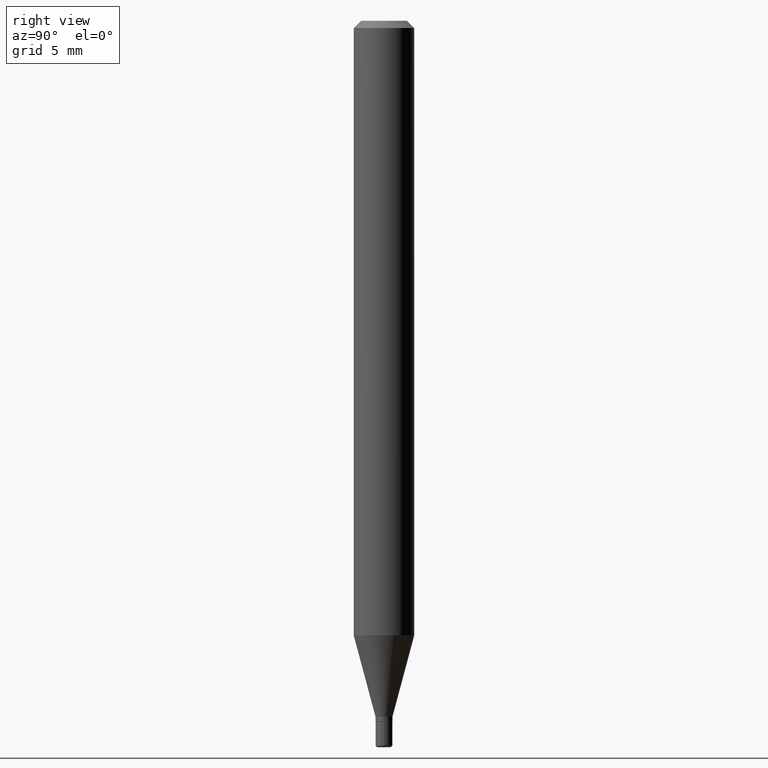
[diagram: clean part render]
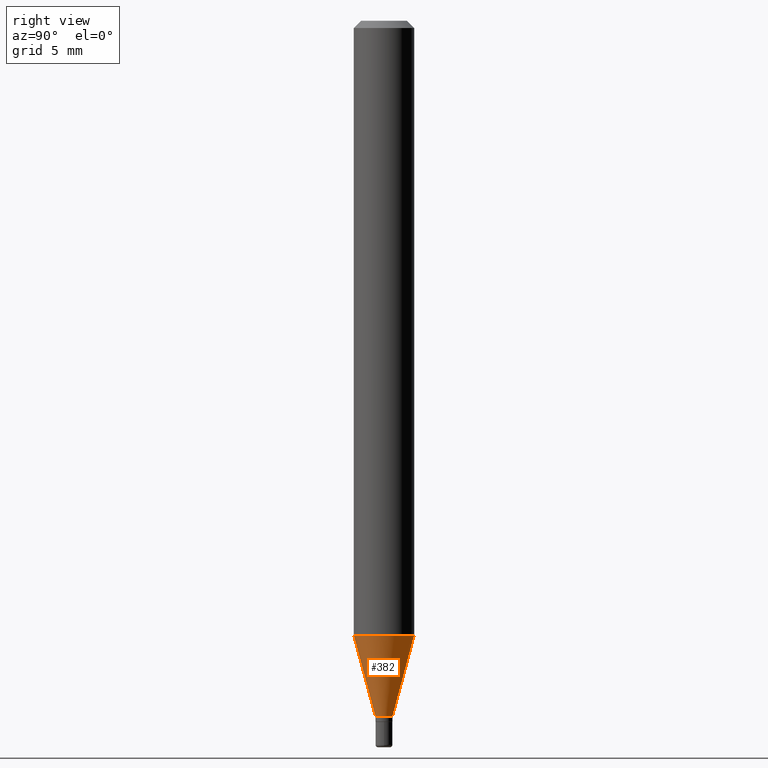
[diagram: same view with one face highlighted and labeled with its STEP entity id]
A machine part, right view. The second image highlights one B-rep face of the part: STEP entity #382.
In plain terms, the highlighted conical surface has half-angle 15 deg.
Its self-contained STEP definition (entity closure, byte-faithful):
#3 = EDGE_CURVE ( 'NONE', #441, #167, #474, .T. ) ;
#12 = EDGE_LOOP ( 'NONE', ( #271, #253, #512, #489 ) ) ;
#19 = DIRECTION ( 'NONE',  ( -2.445372536736762504E-29, 3.491619202172534245E-15, 1.000000000000000000 ) ) ;
#41 = AXIS2_PLACEMENT_3D ( 'NONE', #147, #426, #98 ) ;
#79 = AXIS2_PLACEMENT_3D ( 'NONE', #499, #304, #468 ) ;
#83 = VERTEX_POINT ( 'NONE', #181 ) ;
#97 = EDGE_CURVE ( 'NONE', #246, #167, #266, .T. ) ;
#98 = DIRECTION ( 'NONE',  ( -6.982962677686265922E-15, -1.000000000000000000, 4.370956789862821150E-15 ) ) ;
#101 = FACE_OUTER_BOUND ( 'NONE', #12, .T. ) ;
#102 = CIRCLE ( 'NONE', #79, 0.01750000000000009187 ) ;
#129 = CARTESIAN_POINT ( 'NONE',  ( -1.222018468594751745E-16, -0.01750000000000511216, -1.437000000000000277 ) ) ;
#147 = CARTESIAN_POINT ( 'NONE',  ( 3.103318880516645580E-29, -4.431066281678338175E-15, -1.269057713659401232 ) ) ;
#167 = VERTEX_POINT ( 'NONE', #398 ) ;
#177 = AXIS2_PLACEMENT_3D ( 'NONE', #387, #19, #183 ) ;
#181 = CARTESIAN_POINT ( 'NONE',  ( -1.222018468594751745E-16, -0.01750000000000511216, -1.437000000000000277 ) ) ;
#183 = DIRECTION ( 'NONE',  ( -6.982962677686266711E-15, -1.000000000000000000, 0.000000000000000000 ) ) ;
#208 = VECTOR ( 'NONE', #432, 39.37007874015748854 ) ;
#237 = DIRECTION ( 'NONE',  ( -1.807323732225323828E-15, -0.2588190451025172978, 0.9659258262890690894 ) ) ;
#246 = VERTEX_POINT ( 'NONE', #507 ) ;
#253 = ORIENTED_EDGE ( 'NONE', *, *, #97, .T. ) ;
#261 = CARTESIAN_POINT ( 'NONE',  ( 1.243449787580533143E-16, 0.01749999999999507505, -1.437000000000000277 ) ) ;
#266 = LINE ( 'NONE', #261, #208 ) ;
#271 = ORIENTED_EDGE ( 'NONE', *, *, #396, .T. ) ;
#304 = DIRECTION ( 'NONE',  ( -2.445372536736762504E-29, 3.491619202172534245E-15, 1.000000000000000000 ) ) ;
#332 = CONICAL_SURFACE ( 'NONE', #177, 0.01750000000000009187, 0.2617993877991494078 ) ;
#360 = LINE ( 'NONE', #129, #427 ) ;
#382 = ADVANCED_FACE ( 'NONE', ( #101 ), #332, .T. ) ;
#387 = CARTESIAN_POINT ( 'NONE',  ( 3.514000335290727898E-29, -5.017456793521932494E-15, -1.437000000000000277 ) ) ;
#396 = EDGE_CURVE ( 'NONE', #83, #246, #102, .T. ) ;
#398 = CARTESIAN_POINT ( 'NONE',  ( 4.440892098500933817E-16, 0.06249999999999555217, -1.269057713659401454 ) ) ;
#426 = DIRECTION ( 'NONE',  ( -2.445372536736762504E-29, 3.491619202172534245E-15, 1.000000000000000000 ) ) ;
#427 = VECTOR ( 'NONE', #237, 39.37007874015748854 ) ;
#432 = DIRECTION ( 'NONE',  ( 1.839019923739594004E-15, 0.2588190451025240701, 0.9659258262890673130 ) ) ;
#438 = CARTESIAN_POINT ( 'NONE',  ( -4.364351673553606573E-16, -0.06250000000000444089, -1.269057713659400788 ) ) ;
#441 = VERTEX_POINT ( 'NONE', #438 ) ;
#468 = DIRECTION ( 'NONE',  ( -6.982962677686266711E-15, -1.000000000000000000, 0.000000000000000000 ) ) ;
#473 = EDGE_CURVE ( 'NONE', #83, #441, #360, .T. ) ;
#474 = CIRCLE ( 'NONE', #41, 0.06250000000000000000 ) ;
#489 = ORIENTED_EDGE ( 'NONE', *, *, #473, .F. ) ;
#499 = CARTESIAN_POINT ( 'NONE',  ( 3.514000335290727898E-29, -5.017456793521932494E-15, -1.437000000000000277 ) ) ;
#507 = CARTESIAN_POINT ( 'NONE',  ( 2.842170943040736069E-16, 0.01749999999999507505, -1.437000000000000277 ) ) ;
#512 = ORIENTED_EDGE ( 'NONE', *, *, #3, .F. ) ;